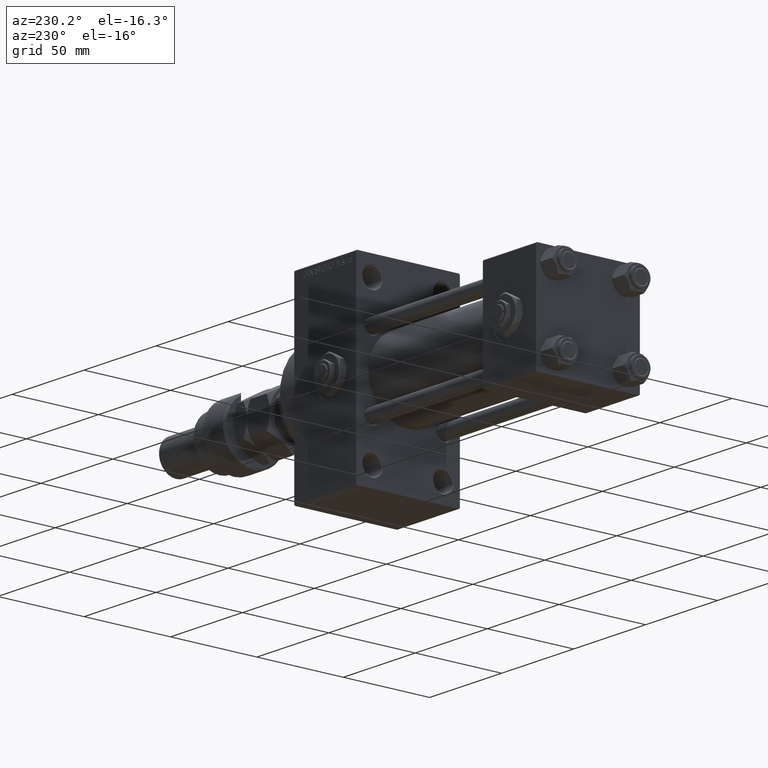
[diagram: clean part render]
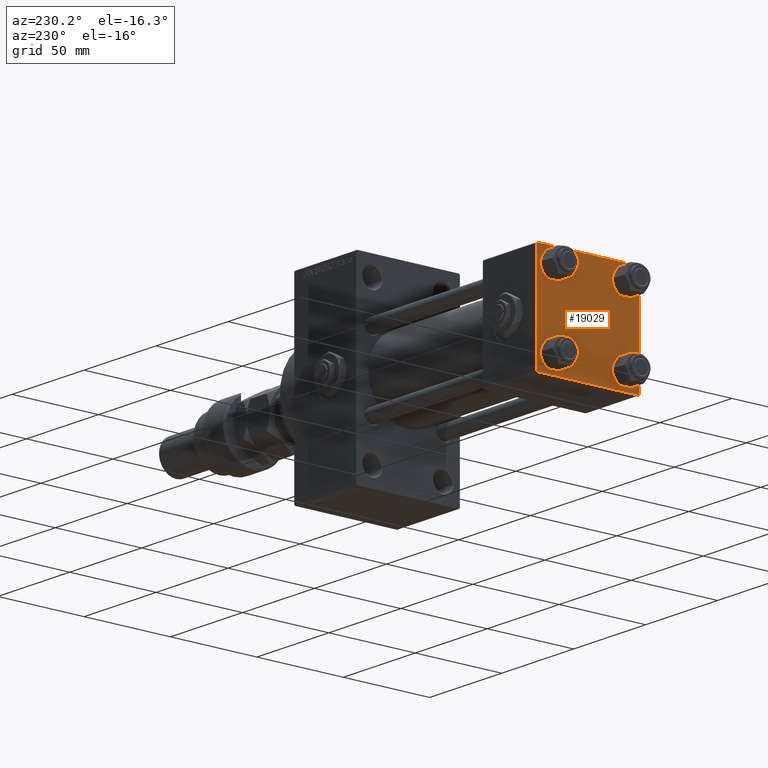
[diagram: same view with one face highlighted and labeled with its STEP entity id]
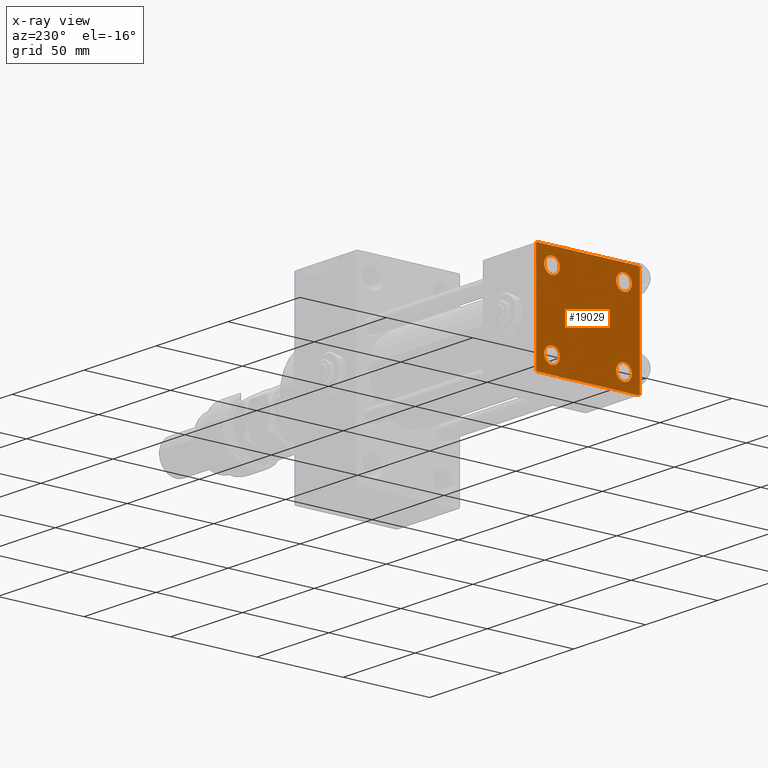
[diagram: x-ray of the same camera — body ghosted, the highlighted face saturated]
A machine part, auxiliary view. The second image highlights one B-rep face of the part: STEP entity #19029.
The next image is the same camera in x-ray: the body ghosted, the highlighted face saturated — about 0% of this face is hidden behind the body in this view.
In plain terms, the highlighted planar face has unit normal (-1, 0, 0).
Its self-contained STEP definition (entity closure, byte-faithful):
#147 = VERTEX_POINT ( 'NONE', #30964 ) ;
#477 = EDGE_CURVE ( 'NONE', #28936, #24691, #51416, .T. ) ;
#1087 = AXIS2_PLACEMENT_3D ( 'NONE', #11826, #44152, #12601 ) ;
#1529 = CARTESIAN_POINT ( 'NONE',  ( 0.000000000000000000, 29.74999999999999645, 29.74999999999999645 ) ) ;
#1731 = DIRECTION ( 'NONE',  ( 1.000000000000000000, -0.000000000000000000, 0.000000000000000000 ) ) ;
#1743 = CARTESIAN_POINT ( 'NONE',  ( 0.000000000000000000, -20.84999999999999076, -25.35000000000002274 ) ) ;
#2209 = CARTESIAN_POINT ( 'NONE',  ( 0.000000000000000000, 20.84999999999999787, 20.85000000000000142 ) ) ;
#4295 = ORIENTED_EDGE ( 'NONE', *, *, #38898, .F. ) ;
#4593 = EDGE_CURVE ( 'NONE', #23471, #147, #44266, .T. ) ;
#4598 = EDGE_CURVE ( 'NONE', #32858, #44401, #19764, .T. ) ;
#4747 = CIRCLE ( 'NONE', #34382, 4.500000000000017764 ) ;
#4982 = LINE ( 'NONE', #1529, #41392 ) ;
#5894 = AXIS2_PLACEMENT_3D ( 'NONE', #25153, #33378, #33121 ) ;
#6649 = AXIS2_PLACEMENT_3D ( 'NONE', #47203, #35762, #7673 ) ;
#6912 = VERTEX_POINT ( 'NONE', #24886 ) ;
#7063 = ORIENTED_EDGE ( 'NONE', *, *, #32665, .T. ) ;
#7108 = LINE ( 'NONE', #28017, #20831 ) ;
#7673 = DIRECTION ( 'NONE',  ( -0.000000000000000000, 0.000000000000000000, 1.000000000000000000 ) ) ;
#7763 = EDGE_LOOP ( 'NONE', ( #34106, #29522 ) ) ;
#8374 = DIRECTION ( 'NONE',  ( 0.000000000000000000, 0.000000000000000000, 1.000000000000000000 ) ) ;
#8635 = CARTESIAN_POINT ( 'NONE',  ( 0.000000000000000000, -20.84999999999999076, -20.85000000000000497 ) ) ;
#9679 = ORIENTED_EDGE ( 'NONE', *, *, #13728, .T. ) ;
#10933 = CARTESIAN_POINT ( 'NONE',  ( 0.000000000000000000, 29.74999999999957723, -29.75000000000040501 ) ) ;
#10969 = CARTESIAN_POINT ( 'NONE',  ( 0.000000000000000000, -20.84999999999999076, 20.85000000000000497 ) ) ;
#11380 = EDGE_CURVE ( 'NONE', #147, #23471, #4747, .T. ) ;
#11403 = FACE_BOUND ( 'NONE', #7763, .T. ) ;
#11558 = CARTESIAN_POINT ( 'NONE',  ( 0.000000000000000000, -30.00000000000000000, 29.49999999999999289 ) ) ;
#11826 = CARTESIAN_POINT ( 'NONE',  ( 0.000000000000000000, 20.84999999999999787, 20.85000000000000142 ) ) ;
#12155 = ORIENTED_EDGE ( 'NONE', *, *, #22137, .T. ) ;
#12601 = DIRECTION ( 'NONE',  ( 0.000000000000000000, 0.000000000000000000, 1.000000000000000000 ) ) ;
#12688 = CIRCLE ( 'NONE', #16051, 4.500000000000017764 ) ;
#12839 = VERTEX_POINT ( 'NONE', #12909 ) ;
#12909 = CARTESIAN_POINT ( 'NONE',  ( 0.000000000000000000, -29.49999999999998579, 29.99999999999999289 ) ) ;
#12960 = CARTESIAN_POINT ( 'NONE',  ( 0.000000000000000000, 29.49999999999997868, -30.00000000000000000 ) ) ;
#13728 = EDGE_CURVE ( 'NONE', #50976, #44401, #7108, .T. ) ;
#13824 = VECTOR ( 'NONE', #52019, 999.9999999999998863 ) ;
#13893 = AXIS2_PLACEMENT_3D ( 'NONE', #52043, #19174, #15465 ) ;
#14111 = VERTEX_POINT ( 'NONE', #23980 ) ;
#14432 = DIRECTION ( 'NONE',  ( 1.000000000000000000, -0.000000000000000000, 0.000000000000000000 ) ) ;
#14688 = CARTESIAN_POINT ( 'NONE',  ( 0.000000000000000000, -20.84999999999999076, 25.35000000000002274 ) ) ;
#14698 = DIRECTION ( 'NONE',  ( 0.000000000000000000, 0.000000000000000000, 1.000000000000000000 ) ) ;
#14944 = DIRECTION ( 'NONE',  ( 0.000000000000000000, 0.000000000000000000, 1.000000000000000000 ) ) ;
#15209 = CIRCLE ( 'NONE', #5894, 4.500000000000017764 ) ;
#15370 = VECTOR ( 'NONE', #35951, 1000.000000000000000 ) ;
#15465 = DIRECTION ( 'NONE',  ( 0.000000000000000000, 0.000000000000000000, 1.000000000000000000 ) ) ;
#15760 = DIRECTION ( 'NONE',  ( 0.000000000000000000, -1.000000000000000000, -1.156482317317871725E-16 ) ) ;
#15854 = DIRECTION ( 'NONE',  ( 0.000000000000000000, 0.000000000000000000, -1.000000000000000000 ) ) ;
#16051 = AXIS2_PLACEMENT_3D ( 'NONE', #35425, #50570, #34645 ) ;
#16596 = CARTESIAN_POINT ( 'NONE',  ( 0.000000000000000000, 29.99999999999999289, 30.00000000000000000 ) ) ;
#16657 = CARTESIAN_POINT ( 'NONE',  ( 0.000000000000000000, 20.84999999999999787, 16.34999999999998366 ) ) ;
#16894 = ORIENTED_EDGE ( 'NONE', *, *, #48252, .T. ) ;
#17558 = VECTOR ( 'NONE', #15760, 1000.000000000000000 ) ;
#17827 = ORIENTED_EDGE ( 'NONE', *, *, #25258, .T. ) ;
#18240 = DIRECTION ( 'NONE',  ( -0.000000000000000000, 0.7071067811865474617, 0.7071067811865474617 ) ) ;
#19026 = CARTESIAN_POINT ( 'NONE',  ( 0.000000000000000000, -29.50000000000000000, -30.00000000000000711 ) ) ;
#19029 = ADVANCED_FACE ( 'NONE', ( #39229, #27800, #39485, #11403, #35236 ), #23825, .T. ) ;
#19174 = DIRECTION ( 'NONE',  ( 1.000000000000000000, -0.000000000000000000, 0.000000000000000000 ) ) ;
#19764 = LINE ( 'NONE', #44676, #42575 ) ;
#20831 = VECTOR ( 'NONE', #48201, 1000.000000000000114 ) ;
#22130 = AXIS2_PLACEMENT_3D ( 'NONE', #33517, #1731, #25301 ) ;
#22137 = EDGE_CURVE ( 'NONE', #24691, #28936, #15209, .T. ) ;
#23471 = VERTEX_POINT ( 'NONE', #16657 ) ;
#23825 = PLANE ( 'NONE',  #6649 ) ;
#23930 = EDGE_LOOP ( 'NONE', ( #12155, #39669 ) ) ;
#23980 = CARTESIAN_POINT ( 'NONE',  ( 0.000000000000000000, 20.84999999999999787, -16.34999999999998366 ) ) ;
#24048 = LINE ( 'NONE', #51664, #38821 ) ;
#24173 = VERTEX_POINT ( 'NONE', #14688 ) ;
#24527 = DIRECTION ( 'NONE',  ( 1.000000000000000000, -0.000000000000000000, 0.000000000000000000 ) ) ;
#24691 = VERTEX_POINT ( 'NONE', #37802 ) ;
#24886 = CARTESIAN_POINT ( 'NONE',  ( 0.000000000000000000, 20.84999999999999787, -25.35000000000001918 ) ) ;
#25153 = CARTESIAN_POINT ( 'NONE',  ( 0.000000000000000000, -20.84999999999999076, -20.85000000000000497 ) ) ;
#25258 = EDGE_CURVE ( 'NONE', #25302, #24173, #51895, .T. ) ;
#25301 = DIRECTION ( 'NONE',  ( 0.000000000000000000, 0.000000000000000000, 1.000000000000000000 ) ) ;
#25302 = VERTEX_POINT ( 'NONE', #36634 ) ;
#25907 = LINE ( 'NONE', #34396, #52460 ) ;
#26085 = EDGE_LOOP ( 'NONE', ( #7063, #43841, #34825, #9679, #50810, #38195, #4295, #46765 ) ) ;
#26673 = CARTESIAN_POINT ( 'NONE',  ( 0.000000000000000000, -30.00000000000000000, -29.50000000000001776 ) ) ;
#27081 = LINE ( 'NONE', #10933, #13824 ) ;
#27677 = EDGE_CURVE ( 'NONE', #46538, #50976, #31646, .T. ) ;
#27800 = FACE_BOUND ( 'NONE', #23930, .T. ) ;
#28017 = CARTESIAN_POINT ( 'NONE',  ( 0.000000000000000000, -29.75000000000001066, -29.75000000000001066 ) ) ;
#28936 = VERTEX_POINT ( 'NONE', #1743 ) ;
#29522 = ORIENTED_EDGE ( 'NONE', *, *, #4593, .T. ) ;
#30443 = EDGE_CURVE ( 'NONE', #33958, #38127, #4982, .T. ) ;
#30964 = CARTESIAN_POINT ( 'NONE',  ( 0.000000000000000000, 20.84999999999999787, 25.35000000000001918 ) ) ;
#31646 = LINE ( 'NONE', #36146, #17558 ) ;
#31863 = EDGE_LOOP ( 'NONE', ( #16894, #17827 ) ) ;
#32366 = EDGE_CURVE ( 'NONE', #32858, #12839, #25907, .T. ) ;
#32665 = EDGE_CURVE ( 'NONE', #38127, #36532, #24048, .T. ) ;
#32858 = VERTEX_POINT ( 'NONE', #11558 ) ;
#33121 = DIRECTION ( 'NONE',  ( 0.000000000000000000, 0.000000000000000000, 1.000000000000000000 ) ) ;
#33378 = DIRECTION ( 'NONE',  ( 1.000000000000000000, -0.000000000000000000, 0.000000000000000000 ) ) ;
#33517 = CARTESIAN_POINT ( 'NONE',  ( 0.000000000000000000, 20.84999999999999787, -20.85000000000000142 ) ) ;
#33863 = CARTESIAN_POINT ( 'NONE',  ( 0.000000000000000000, 29.99999999999999289, -29.50000000000000000 ) ) ;
#33958 = VERTEX_POINT ( 'NONE', #43062 ) ;
#34082 = AXIS2_PLACEMENT_3D ( 'NONE', #10969, #35331, #14698 ) ;
#34106 = ORIENTED_EDGE ( 'NONE', *, *, #11380, .T. ) ;
#34382 = AXIS2_PLACEMENT_3D ( 'NONE', #2209, #14432, #14944 ) ;
#34396 = CARTESIAN_POINT ( 'NONE',  ( -0.000000000000000000, -29.74999999999999645, 29.74999999999999645 ) ) ;
#34645 = DIRECTION ( 'NONE',  ( 0.000000000000000000, 0.000000000000000000, 1.000000000000000000 ) ) ;
#34701 = EDGE_CURVE ( 'NONE', #6912, #14111, #12688, .T. ) ;
#34825 = ORIENTED_EDGE ( 'NONE', *, *, #27677, .T. ) ;
#35236 = FACE_OUTER_BOUND ( 'NONE', #26085, .T. ) ;
#35331 = DIRECTION ( 'NONE',  ( 1.000000000000000000, -0.000000000000000000, 0.000000000000000000 ) ) ;
#35425 = CARTESIAN_POINT ( 'NONE',  ( 0.000000000000000000, 20.84999999999999787, -20.85000000000000142 ) ) ;
#35762 = DIRECTION ( 'NONE',  ( -1.000000000000000000, 0.000000000000000000, -0.000000000000000000 ) ) ;
#35951 = DIRECTION ( 'NONE',  ( 0.000000000000000000, -1.000000000000000000, -1.156482317317871725E-16 ) ) ;
#36146 = CARTESIAN_POINT ( 'NONE',  ( 0.000000000000000000, 29.99999999999999289, -30.00000000000000000 ) ) ;
#36177 = DIRECTION ( 'NONE',  ( 0.000000000000000000, 0.000000000000000000, -1.000000000000000000 ) ) ;
#36532 = VERTEX_POINT ( 'NONE', #33863 ) ;
#36634 = CARTESIAN_POINT ( 'NONE',  ( 0.000000000000000000, -20.84999999999999076, 16.34999999999998721 ) ) ;
#36986 = CARTESIAN_POINT ( 'NONE',  ( 0.000000000000000000, 29.99999999999999289, 29.50000000000000000 ) ) ;
#37108 = ORIENTED_EDGE ( 'NONE', *, *, #34701, .T. ) ;
#37590 = CIRCLE ( 'NONE', #13893, 4.500000000000017764 ) ;
#37802 = CARTESIAN_POINT ( 'NONE',  ( 0.000000000000000000, -20.84999999999999076, -16.34999999999998721 ) ) ;
#38127 = VERTEX_POINT ( 'NONE', #36986 ) ;
#38195 = ORIENTED_EDGE ( 'NONE', *, *, #32366, .T. ) ;
#38821 = VECTOR ( 'NONE', #15854, 1000.000000000000000 ) ;
#38898 = EDGE_CURVE ( 'NONE', #33958, #12839, #39678, .T. ) ;
#39001 = EDGE_CURVE ( 'NONE', #14111, #6912, #49232, .T. ) ;
#39229 = FACE_BOUND ( 'NONE', #31863, .T. ) ;
#39485 = FACE_BOUND ( 'NONE', #47555, .T. ) ;
#39669 = ORIENTED_EDGE ( 'NONE', *, *, #477, .T. ) ;
#39678 = LINE ( 'NONE', #16596, #15370 ) ;
#41392 = VECTOR ( 'NONE', #46602, 1000.000000000000114 ) ;
#42283 = ORIENTED_EDGE ( 'NONE', *, *, #39001, .T. ) ;
#42575 = VECTOR ( 'NONE', #36177, 1000.000000000000000 ) ;
#43062 = CARTESIAN_POINT ( 'NONE',  ( 0.000000000000000000, 29.49999999999999289, 30.00000000000000000 ) ) ;
#43101 = EDGE_CURVE ( 'NONE', #36532, #46538, #27081, .T. ) ;
#43841 = ORIENTED_EDGE ( 'NONE', *, *, #43101, .T. ) ;
#44152 = DIRECTION ( 'NONE',  ( 1.000000000000000000, -0.000000000000000000, 0.000000000000000000 ) ) ;
#44266 = CIRCLE ( 'NONE', #1087, 4.500000000000017764 ) ;
#44401 = VERTEX_POINT ( 'NONE', #26673 ) ;
#44676 = CARTESIAN_POINT ( 'NONE',  ( 0.000000000000000000, -30.00000000000000000, 29.99999999999999289 ) ) ;
#46538 = VERTEX_POINT ( 'NONE', #12960 ) ;
#46602 = DIRECTION ( 'NONE',  ( 0.000000000000000000, 0.7071067811865474617, -0.7071067811865474617 ) ) ;
#46765 = ORIENTED_EDGE ( 'NONE', *, *, #30443, .T. ) ;
#47203 = CARTESIAN_POINT ( 'NONE',  ( 0.000000000000000000, 0.000000000000000000, 0.000000000000000000 ) ) ;
#47555 = EDGE_LOOP ( 'NONE', ( #42283, #37108 ) ) ;
#48201 = DIRECTION ( 'NONE',  ( 0.000000000000000000, -0.7071067811865474617, 0.7071067811865474617 ) ) ;
#48252 = EDGE_CURVE ( 'NONE', #24173, #25302, #37590, .T. ) ;
#48870 = AXIS2_PLACEMENT_3D ( 'NONE', #8635, #24527, #8374 ) ;
#49232 = CIRCLE ( 'NONE', #22130, 4.500000000000017764 ) ;
#50570 = DIRECTION ( 'NONE',  ( 1.000000000000000000, -0.000000000000000000, 0.000000000000000000 ) ) ;
#50810 = ORIENTED_EDGE ( 'NONE', *, *, #4598, .F. ) ;
#50976 = VERTEX_POINT ( 'NONE', #19026 ) ;
#51416 = CIRCLE ( 'NONE', #48870, 4.500000000000017764 ) ;
#51664 = CARTESIAN_POINT ( 'NONE',  ( 0.000000000000000000, 29.99999999999999289, 30.00000000000000000 ) ) ;
#51895 = CIRCLE ( 'NONE', #34082, 4.500000000000017764 ) ;
#52019 = DIRECTION ( 'NONE',  ( -0.000000000000000000, -0.7071067811865574537, -0.7071067811865376918 ) ) ;
#52043 = CARTESIAN_POINT ( 'NONE',  ( 0.000000000000000000, -20.84999999999999076, 20.85000000000000497 ) ) ;
#52460 = VECTOR ( 'NONE', #18240, 1000.000000000000114 ) ;